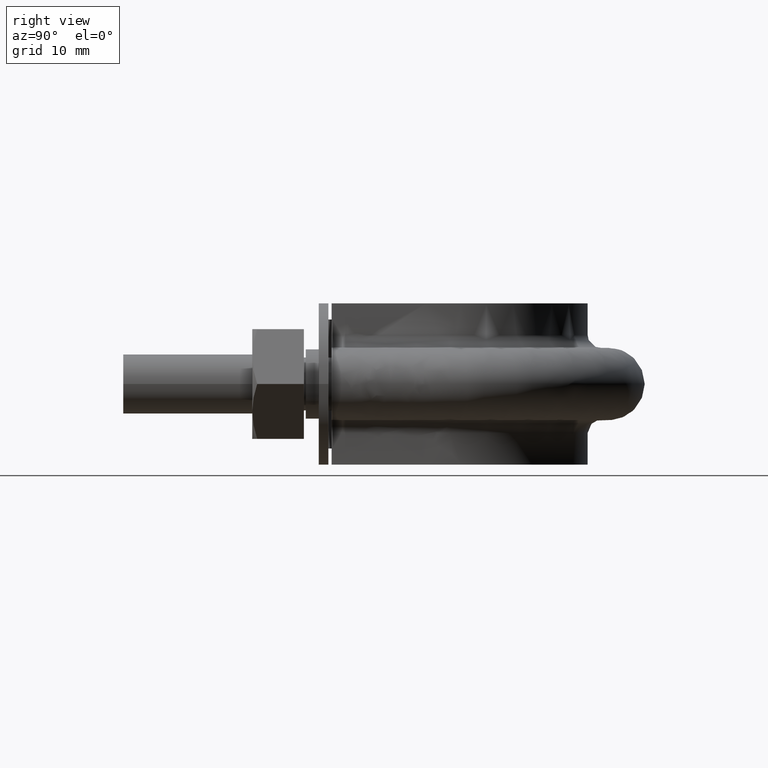
[diagram: clean part render]
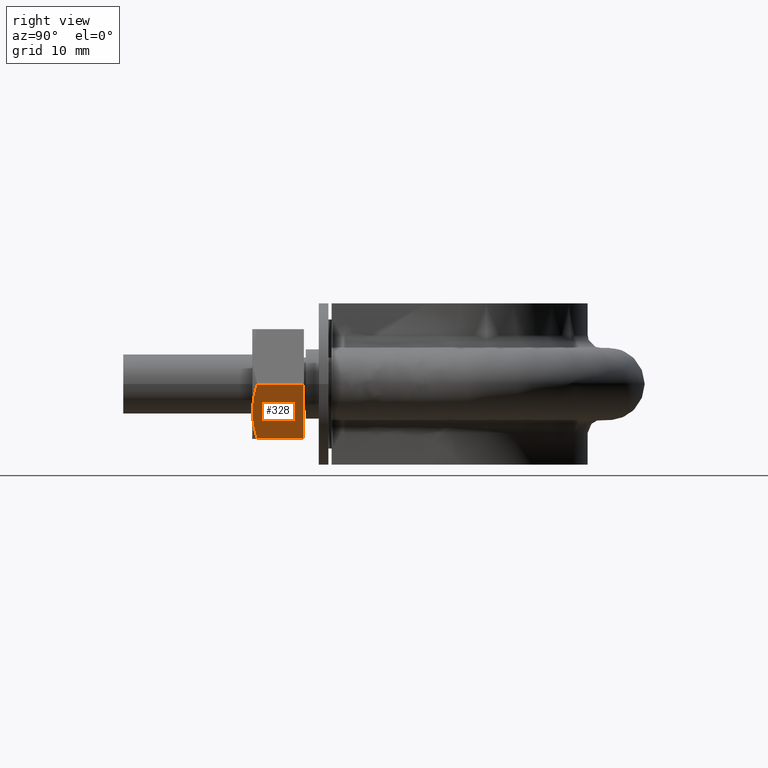
[diagram: same view with one face highlighted and labeled with its STEP entity id]
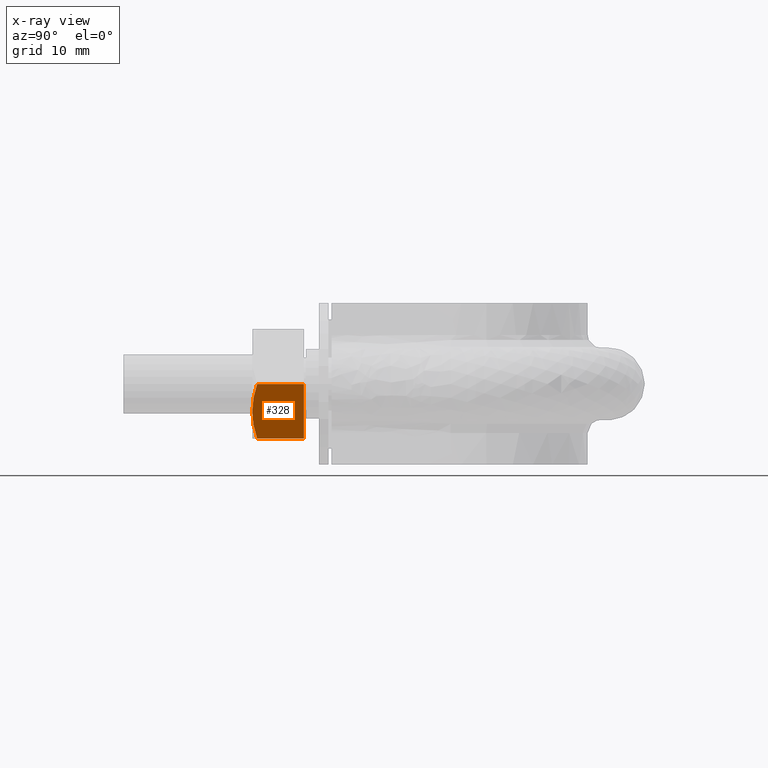
[diagram: x-ray of the same camera — body ghosted, the highlighted face saturated]
A machine part, right view. The second image highlights one B-rep face of the part: STEP entity #328.
The next image is the same camera in x-ray: the body ghosted, the highlighted face saturated — about 0% of this face is hidden behind the body in this view.
In plain terms, the highlighted planar face has unit normal (-0.866, 0, 0.5).
Its self-contained STEP definition (entity closure, byte-faithful):
#328 = ADVANCED_FACE( '', ( #516 ), #517, .F. );
#516 = FACE_OUTER_BOUND( '', #1444, .T. );
#517 = PLANE( '', #1445 );
#1444 = EDGE_LOOP( '', ( #1999, #2000, #2001, #2002, #2003 ) );
#1445 = AXIS2_PLACEMENT_3D( '', #2004, #2005, #2006 );
#1999 = ORIENTED_EDGE( '', *, *, #2517, .F. );
#2000 = ORIENTED_EDGE( '', *, *, #2512, .F. );
#2001 = ORIENTED_EDGE( '', *, *, #2518, .F. );
#2002 = ORIENTED_EDGE( '', *, *, #2504, .F. );
#2003 = ORIENTED_EDGE( '', *, *, #2519, .F. );
#2004 = CARTESIAN_POINT( '', ( 34.3149545762236, 28.0000000000000, -7.80463277235939E-008 ) );
#2005 = DIRECTION( '', ( -0.866025399808550, 5.90322450993308E-017, 0.500000006886442 ) );
#2006 = DIRECTION( '', ( 0.500000006886442, -3.87595688863152E-016, 0.866025399808550 ) );
#2504 = EDGE_CURVE( '', #2824, #2826, #2827, .T. );
#2512 = EDGE_CURVE( '', #2838, #2787, #2840, .T. );
#2517 = EDGE_CURVE( '', #2787, #2845, #2846, .T. );
#2518 = EDGE_CURVE( '', #2826, #2838, #2847, .F. );
#2519 = EDGE_CURVE( '', #2845, #2824, #2848, .T. );
#2787 = VERTEX_POINT( '', #3451 );
#2824 = VERTEX_POINT( '', #3506 );
#2826 = VERTEX_POINT( '', #3508 );
#2827 = LINE( '', #3509, #3510 );
#2838 = VERTEX_POINT( '', #3531 );
#2840 = B_SPLINE_CURVE_WITH_KNOTS( '', 3, ( #3533, #3534, #3535, #3536, #3537, #3538 ), .UNSPECIFIED., .F., .F., ( 4, 2, 4 ), ( 4.83064900408751E-007, 0.00246777364959070, 0.00493506423428099 ), .UNSPECIFIED. );
#2845 = VERTEX_POINT( '', #3555 );
#2846 = B_SPLINE_CURVE_WITH_KNOTS( '', 3, ( #3556, #3557, #3558, #3559, #3560, #3561, #3562, #3563 ), .UNSPECIFIED., .F., .F., ( 4, 2, 2, 4 ), ( 0.00493506423428099, 0.00616384870526321, 0.00739263317624543, 0.00985020211820987 ), .UNSPECIFIED. );
#2847 = LINE( '', #3564, #3565 );
#2848 = LINE( '', #3566, #3567 );
#3451 = CARTESIAN_POINT( '', ( 31.8612158983727, 20.0000000000000, -4.25000005853475 ) );
#3506 = CARTESIAN_POINT( '', ( 34.2999656116127, 28.0000000000000, -0.0259617258285199 ) );
#3508 = CARTESIAN_POINT( '', ( 29.4224661851326, 28.0000000000000, -8.47403839124097 ) );
#3509 = CARTESIAN_POINT( '', ( 29.4112158646291, 28.0000000000000, -8.49352451759664 ) );
#3510 = VECTOR( '', #4024, 1000.00000000000 );
#3531 = CARTESIAN_POINT( '', ( 29.4224661851326, 20.7505553499465, -8.47403839124097 ) );
#3533 = CARTESIAN_POINT( '', ( 29.4224661851326, 20.7505553499465, -8.47403839124097 ) );
#3534 = CARTESIAN_POINT( '', ( 29.8215185549096, 20.5212203171277, -7.78285942459921 ) );
#3535 = CARTESIAN_POINT( '', ( 30.2234530286873, 20.3324525365440, -7.08668850748708 ) );
#3536 = CARTESIAN_POINT( '', ( 31.0355985782736, 20.0714148540586, -5.68001117829475 ) );
#3537 = CARTESIAN_POINT( '', ( 31.4458704010313, 20.0000000000000, -4.96939954941411 ) );
#3538 = CARTESIAN_POINT( '', ( 31.8612158983727, 20.0000000000000, -4.25000005853474 ) );
#3555 = CARTESIAN_POINT( '', ( 34.2999656116127, 20.7505553499465, -0.0259617258285221 ) );
#3556 = CARTESIAN_POINT( '', ( 31.8612158983727, 20.0000000000000, -4.25000005853475 ) );
#3557 = CARTESIAN_POINT( '', ( 32.0680703728284, 20.0000000000000, -3.89171760558401 ) );
#3558 = CARTESIAN_POINT( '', ( 32.2759593667986, 20.0177112081763, -3.53164331230545 ) );
#3559 = CARTESIAN_POINT( '', ( 32.6872158982602, 20.0863021936212, -2.81932611795027 ) );
#3560 = CARTESIAN_POINT( '', ( 32.8914770794539, 20.1371116504194, -2.46553538060584 ) );
#3561 = CARTESIAN_POINT( '', ( 33.5006504837859, 20.3331494013913, -1.41041611305904 ) );
#3562 = CARTESIAN_POINT( '', ( 33.9019659590243, 20.5218253127355, -0.715317332847218 ) );
#3563 = CARTESIAN_POINT( '', ( 34.2999656116127, 20.7505553499465, -0.0259617258285232 ) );
#3564 = CARTESIAN_POINT( '', ( 29.4224661851326, 28.0000000000000, -8.47403839124097 ) );
#3565 = VECTOR( '', #4039, 1000.00000000000 );
#3566 = CARTESIAN_POINT( '', ( 34.2999656116127, 28.0000000000000, -0.0259617258285216 ) );
#3567 = VECTOR( '', #4040, 1000.00000000000 );
#4024 = DIRECTION( '', ( -0.500000006886442, 3.87595688863152E-016, -0.866025399808550 ) );
#4039 = DIRECTION( '', ( 2.44921270764476E-016, 1.00000000000000, 3.06151588455594E-016 ) );
#4040 = DIRECTION( '', ( 2.44921270764476E-016, 1.00000000000000, 3.06151588455594E-016 ) );